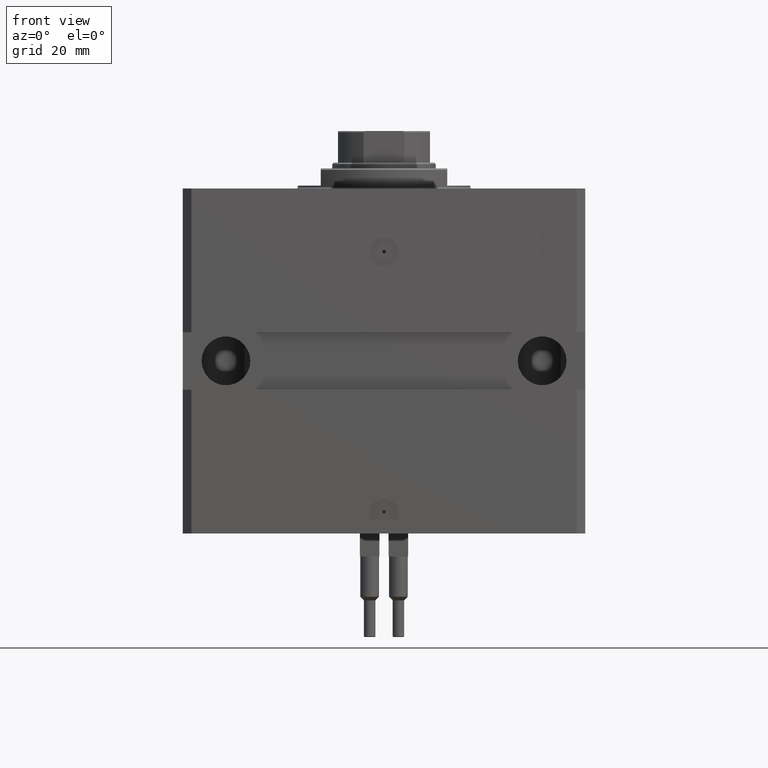
[diagram: clean part render]
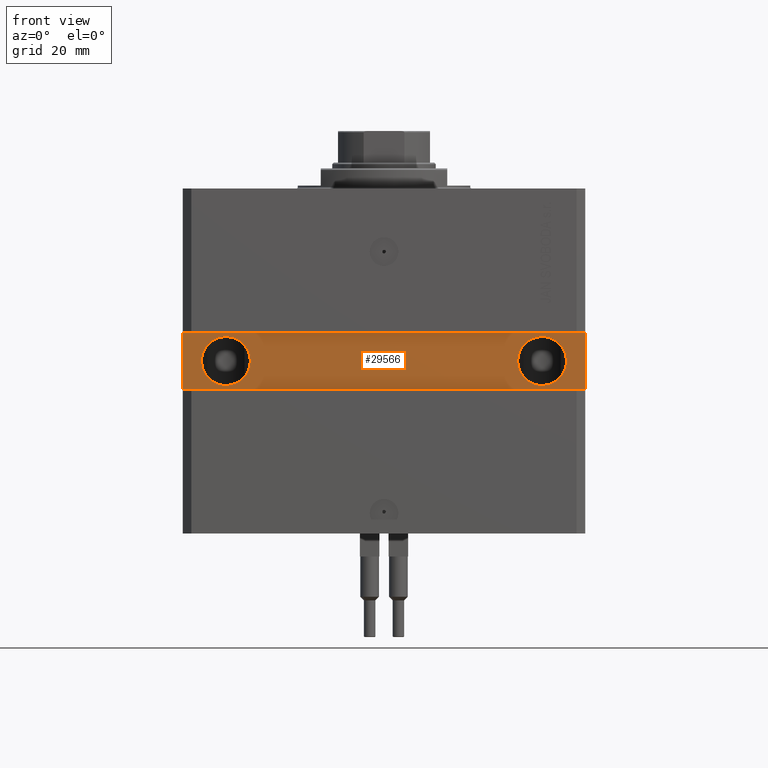
[diagram: same view with one face highlighted and labeled with its STEP entity id]
A machine part, front view. The second image highlights one B-rep face of the part: STEP entity #29566.
In plain terms, the highlighted planar face has unit normal (0, -1, 0).
Its self-contained STEP definition (entity closure, byte-faithful):
#60 = AXIS2_PLACEMENT_3D ( 'NONE', #20661, #19678, #1109 ) ;
#316 = DIRECTION ( 'NONE',  ( 0.000000000000000000, 0.000000000000000000, -1.000000000000000000 ) ) ;
#1109 = DIRECTION ( 'NONE',  ( 1.000000000000000000, 0.000000000000000000, 0.000000000000000000 ) ) ;
#1236 = CARTESIAN_POINT ( 'NONE',  ( -70.00000000000001421, -49.99999999999999289, -70.00000000000000000 ) ) ;
#1458 = VERTEX_POINT ( 'NONE', #31738 ) ;
#2127 = EDGE_LOOP ( 'NONE', ( #33204, #21565 ) ) ;
#3535 = VERTEX_POINT ( 'NONE', #8262 ) ;
#5334 = CARTESIAN_POINT ( 'NONE',  ( 55.00000000000001421, -49.99999999999997868, -60.00000000000000000 ) ) ;
#6001 = CARTESIAN_POINT ( 'NONE',  ( -63.49999999999998579, -49.99999999999999289, -60.00000000000001421 ) ) ;
#6447 = VECTOR ( 'NONE', #316, 1000.000000000000000 ) ;
#8262 = CARTESIAN_POINT ( 'NONE',  ( -46.49999999999998579, -49.99999999999999289, -60.00000000000001421 ) ) ;
#9147 = ORIENTED_EDGE ( 'NONE', *, *, #43980, .T. ) ;
#11766 = DIRECTION ( 'NONE',  ( 9.912705577010323084E-17, -1.000000000000000000, 0.000000000000000000 ) ) ;
#13404 = EDGE_CURVE ( 'NONE', #3535, #36469, #28839, .T. ) ;
#13417 = EDGE_CURVE ( 'NONE', #18832, #40582, #34680, .T. ) ;
#13520 = LINE ( 'NONE', #1236, #16199 ) ;
#13633 = AXIS2_PLACEMENT_3D ( 'NONE', #5334, #35676, #20615 ) ;
#13673 = ORIENTED_EDGE ( 'NONE', *, *, #13417, .T. ) ;
#13713 = DIRECTION ( 'NONE',  ( 0.000000000000000000, 0.000000000000000000, 1.000000000000000000 ) ) ;
#14551 = CARTESIAN_POINT ( 'NONE',  ( 46.50000000000002842, -49.99999999999997868, -60.00000000000000000 ) ) ;
#15200 = VERTEX_POINT ( 'NONE', #21528 ) ;
#16128 = DIRECTION ( 'NONE',  ( 1.000000000000000000, 0.000000000000000000, 0.000000000000000000 ) ) ;
#16199 = VECTOR ( 'NONE', #25298, 1000.000000000000000 ) ;
#16274 = FACE_BOUND ( 'NONE', #17218, .T. ) ;
#17218 = EDGE_LOOP ( 'NONE', ( #27455, #42651 ) ) ;
#18832 = VERTEX_POINT ( 'NONE', #48655 ) ;
#19678 = DIRECTION ( 'NONE',  ( 1.101411730780568590E-16, -1.000000000000000000, 0.000000000000000000 ) ) ;
#20253 = EDGE_LOOP ( 'NONE', ( #9147, #41094, #44746, #13673 ) ) ;
#20615 = DIRECTION ( 'NONE',  ( 1.000000000000000000, 0.000000000000000000, 0.000000000000000000 ) ) ;
#20661 = CARTESIAN_POINT ( 'NONE',  ( -54.99999999999998579, -49.99999999999999289, -60.00000000000001421 ) ) ;
#21467 = DIRECTION ( 'NONE',  ( 1.000000000000000000, 0.000000000000000000, 0.000000000000000000 ) ) ;
#21528 = CARTESIAN_POINT ( 'NONE',  ( 70.00000000000001421, -49.99999999999997868, -49.99999999999996447 ) ) ;
#21565 = ORIENTED_EDGE ( 'NONE', *, *, #41908, .F. ) ;
#21838 = LINE ( 'NONE', #47445, #39471 ) ;
#23641 = DIRECTION ( 'NONE',  ( 1.101411730780568590E-16, -1.000000000000000000, 0.000000000000000000 ) ) ;
#23777 = FACE_BOUND ( 'NONE', #2127, .T. ) ;
#24863 = DIRECTION ( 'NONE',  ( -1.000000000000000000, -9.912705577010323084E-17, -2.973811673103097172E-16 ) ) ;
#25280 = AXIS2_PLACEMENT_3D ( 'NONE', #42599, #11766, #42348 ) ;
#25298 = DIRECTION ( 'NONE',  ( 1.000000000000000000, 9.912705577010323084E-17, 0.000000000000000000 ) ) ;
#25723 = DIRECTION ( 'NONE',  ( 1.259997159735995847E-16, -1.000000000000000000, 2.465190328815661345E-32 ) ) ;
#25813 = VERTEX_POINT ( 'NONE', #14551 ) ;
#27138 = AXIS2_PLACEMENT_3D ( 'NONE', #34657, #25723, #21467 ) ;
#27455 = ORIENTED_EDGE ( 'NONE', *, *, #38349, .F. ) ;
#28839 = CIRCLE ( 'NONE', #40860, 8.500000000000000000 ) ;
#29566 = ADVANCED_FACE ( 'NONE', ( #16274, #23777, #39090 ), #39340, .T. ) ;
#31671 = CARTESIAN_POINT ( 'NONE',  ( -54.99999999999998579, -49.99999999999999289, -60.00000000000001421 ) ) ;
#31738 = CARTESIAN_POINT ( 'NONE',  ( 63.50000000000000000, -49.99999999999997868, -60.00000000000000000 ) ) ;
#33204 = ORIENTED_EDGE ( 'NONE', *, *, #13404, .F. ) ;
#33671 = VERTEX_POINT ( 'NONE', #35523 ) ;
#34518 = CIRCLE ( 'NONE', #60, 8.500000000000000000 ) ;
#34657 = CARTESIAN_POINT ( 'NONE',  ( 55.00000000000001421, -49.99999999999997868, -60.00000000000000000 ) ) ;
#34680 = LINE ( 'NONE', #35689, #6447 ) ;
#35523 = CARTESIAN_POINT ( 'NONE',  ( 70.00000000000001421, -49.99999999999997868, -70.00000000000000000 ) ) ;
#35676 = DIRECTION ( 'NONE',  ( 1.259997159735995847E-16, -1.000000000000000000, 2.465190328815661345E-32 ) ) ;
#35689 = CARTESIAN_POINT ( 'NONE',  ( -70.00000000000001421, -49.99999999999999289, -50.00000000000000000 ) ) ;
#36469 = VERTEX_POINT ( 'NONE', #6001 ) ;
#36714 = EDGE_CURVE ( 'NONE', #25813, #1458, #48774, .T. ) ;
#36986 = EDGE_CURVE ( 'NONE', #33671, #15200, #44302, .T. ) ;
#38349 = EDGE_CURVE ( 'NONE', #1458, #25813, #45618, .T. ) ;
#39090 = FACE_OUTER_BOUND ( 'NONE', #20253, .T. ) ;
#39340 = PLANE ( 'NONE',  #25280 ) ;
#39471 = VECTOR ( 'NONE', #24863, 1000.000000000000000 ) ;
#40582 = VERTEX_POINT ( 'NONE', #43115 ) ;
#40860 = AXIS2_PLACEMENT_3D ( 'NONE', #31671, #23641, #16128 ) ;
#41094 = ORIENTED_EDGE ( 'NONE', *, *, #36986, .T. ) ;
#41271 = CARTESIAN_POINT ( 'NONE',  ( 70.00000000000001421, -49.99999999999997868, -70.00000000000000000 ) ) ;
#41908 = EDGE_CURVE ( 'NONE', #36469, #3535, #34518, .T. ) ;
#42348 = DIRECTION ( 'NONE',  ( 1.000000000000000000, 9.912705577010323084E-17, 0.000000000000000000 ) ) ;
#42599 = CARTESIAN_POINT ( 'NONE',  ( 4.863946211092281633E-15, -49.99999999999998579, 0.000000000000000000 ) ) ;
#42651 = ORIENTED_EDGE ( 'NONE', *, *, #36714, .F. ) ;
#43115 = CARTESIAN_POINT ( 'NONE',  ( -70.00000000000001421, -49.99999999999999289, -70.00000000000000000 ) ) ;
#43980 = EDGE_CURVE ( 'NONE', #40582, #33671, #13520, .T. ) ;
#44302 = LINE ( 'NONE', #41271, #46368 ) ;
#44724 = EDGE_CURVE ( 'NONE', #15200, #18832, #21838, .T. ) ;
#44746 = ORIENTED_EDGE ( 'NONE', *, *, #44724, .T. ) ;
#45618 = CIRCLE ( 'NONE', #13633, 8.499999999999987566 ) ;
#46368 = VECTOR ( 'NONE', #13713, 1000.000000000000000 ) ;
#47445 = CARTESIAN_POINT ( 'NONE',  ( 70.00000000000001421, -49.99999999999997868, -49.99999999999996447 ) ) ;
#48655 = CARTESIAN_POINT ( 'NONE',  ( -70.00000000000001421, -49.99999999999999289, -50.00000000000000000 ) ) ;
#48774 = CIRCLE ( 'NONE', #27138, 8.499999999999987566 ) ;